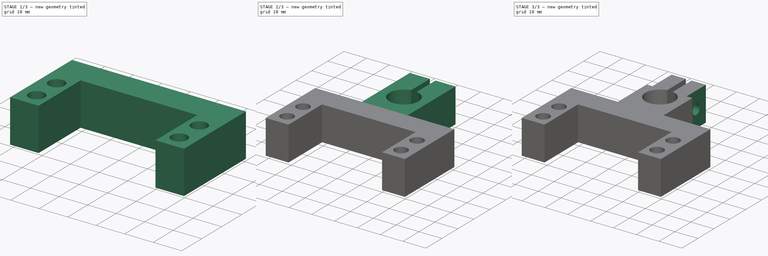
[diagram: build sequence overview — one tinted view per stage of 3, left to right]
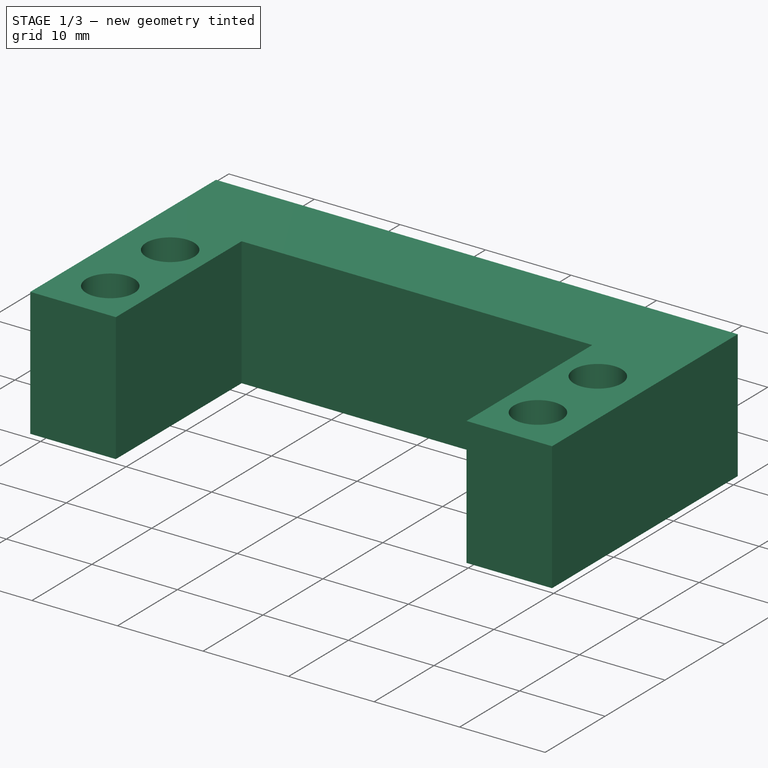
[diagram: stage 1 of 3 — iso view after this stage's code; geometry added in this stage tinted green]
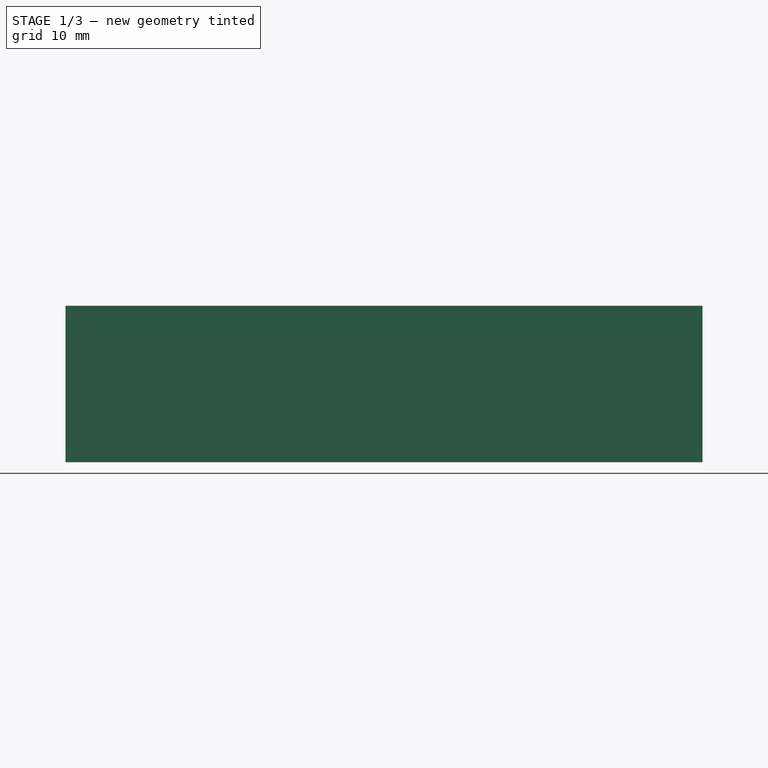
[diagram: stage 1 of 3 — front view after this stage's code; geometry added in this stage tinted green]
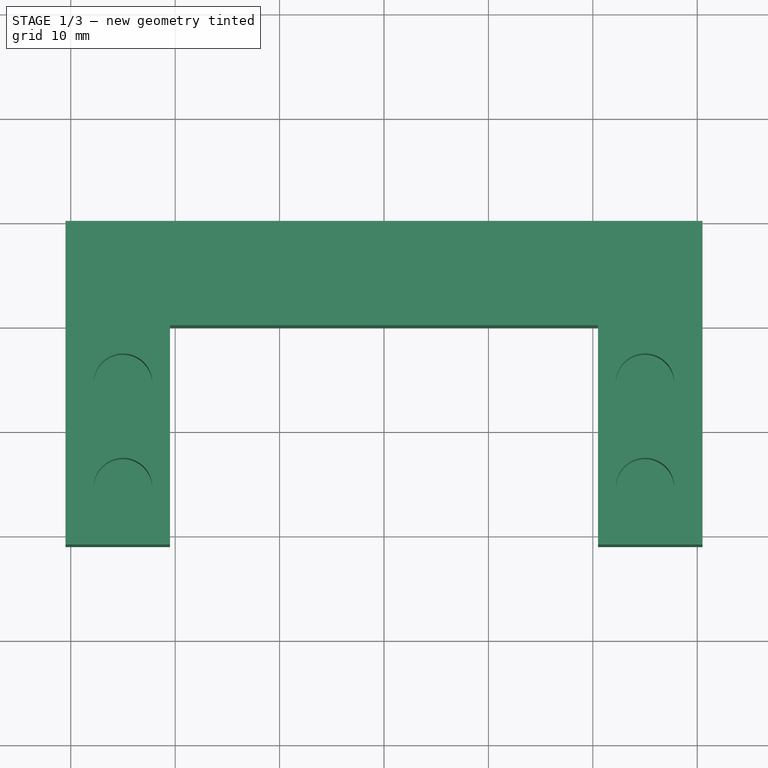
[diagram: stage 1 of 3 — top view after this stage's code; geometry added in this stage tinted green]
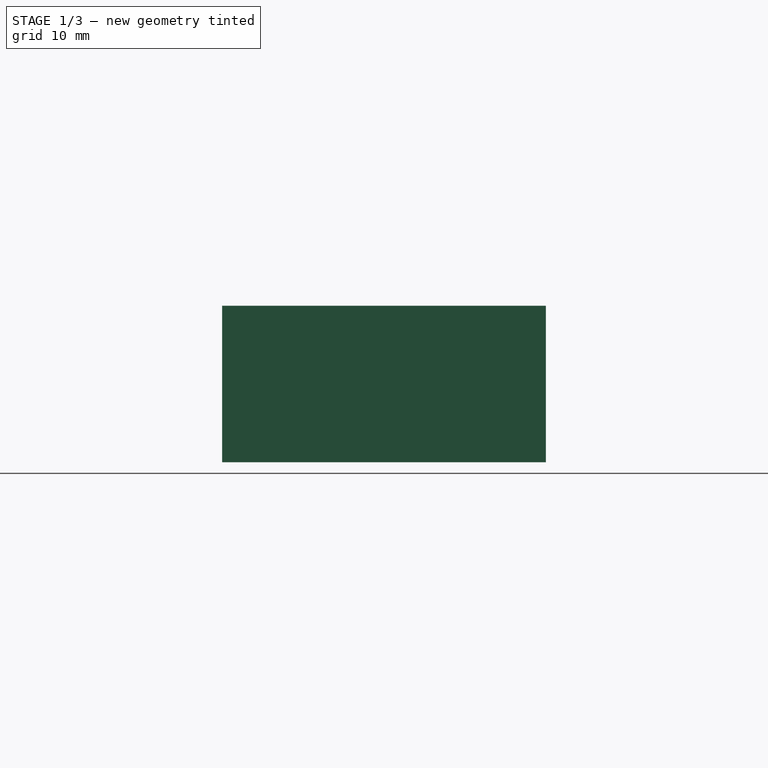
[diagram: stage 1 of 3 — right view after this stage's code; geometry added in this stage tinted green]
FCSTD DOCUMENT  (FreeCAD 0.18.4R)
Label: mount_servo
License: All rights reserved
LicenseURL: http://en.wikipedia.org/wiki/All_rights_reserved
objects: Sketcher::SketchObject×6, PartDesign::Pocket×3, PartDesign::Pad×2, PartDesign::Hole×1, PartDesign::Body×1
note: 19 computed .brp shape members not serialized (recipe doc carries the construction recipe); baked Part::Feature solids carry a one-line shape summary decoded from their .brp

FEATURE [Sketcher::SketchObject] Sketch
  MapMode = 5
  Support = -> [XY_Plane]
  sketch-geometry (8):
    g0: LineSegment StartX=-30.5 StartY=-31 StartZ=0 EndX=-30.5 EndY=0 EndZ=0
    g1: LineSegment StartX=-30.5 StartY=0 StartZ=0 EndX=30.5 EndY=0 EndZ=0
    g2: LineSegment StartX=30.5 StartY=0 StartZ=0 EndX=30.5 EndY=-31 EndZ=0
    g3: LineSegment StartX=30.5 StartY=-31 StartZ=0 EndX=20.5 EndY=-31 EndZ=0
    g4: LineSegment StartX=20.5 StartY=-31 StartZ=0 EndX=20.5 EndY=-10 EndZ=0
    g5: LineSegment StartX=20.5 StartY=-10 StartZ=0 EndX=-20.5 EndY=-10 EndZ=0
    g6: LineSegment StartX=-20.5 StartY=-10 StartZ=0 EndX=-20.5 EndY=-31 EndZ=0
    g7: LineSegment StartX=-20.5 StartY=-31 StartZ=0 EndX=-30.5 EndY=-31 EndZ=0
  constraints (23):
    c: Vertical(g0)
    c: Coincident(g0,g1)
    c: Coincident(g1,g2)
    c: Vertical(g2)
    c: Coincident(g2,g3)
    c: Horizontal(g3)
    c: Coincident(g3,g4)
    c: Vertical(g4)
    c: Coincident(g4,g5)
    c: Horizontal(g5)
    c: Coincident(g5,g6)
    c: Vertical(g6)
    c: Coincident(g6,g7)
    c: Coincident(g7,g0)
    c: Horizontal(g7)
    c: Equal(g7,g3)
    c: Equal(g0,g2)
    c: Tangent(g-1,g1)
    c: DistanceY(g6,g6) = 21
    c: DistanceY(g0,g0) = 31
    c: Symmetric(g0,g1,g-1)
    c: DistanceX(g5,g5) = 41
    c: DistanceX(g3,g3) = 10
FEATURE [PartDesign::Pad] Pad
  Length = 15
  Length2 = 100
  Profile = -> Sketch
  Type = 0
FEATURE [Sketcher::SketchObject] Sketch001
  ExternalGeometry = -> [Pad]
  MapMode = 5
  Placement = pos=(0,0,15) rot=(0,0,1;0rad)
  Support = -> [Pad]
  sketch-geometry (15):
    g0: LineSegment [constr] StartX=20 StartY=-10.5 StartZ=0 EndX=-20 EndY=-10.5 EndZ=0
    g1: LineSegment [constr] StartX=-20 StartY=-10.5 StartZ=0 EndX=-20 EndY=-30.5 EndZ=0
    g2: LineSegment [constr] StartX=-20 StartY=-30.5 StartZ=0 EndX=20 EndY=-30.5 EndZ=0
    g3: LineSegment [constr] StartX=20 StartY=-30.5 StartZ=0 EndX=20 EndY=-10.5 EndZ=0
    g4: GeomPoint X=20.5 Y=-20.5 Z=0
    g5: LineSegment [constr] StartX=20.5 StartY=-20.5 StartZ=0 EndX=-20 EndY=-20.5 EndZ=0
    g6: GeomPoint X=20 Y=-20.5 Z=0
    g7: LineSegment [constr] StartX=25 StartY=-15.5 StartZ=0 EndX=-25 EndY=-15.5 EndZ=0
    g8: LineSegment [constr] StartX=-25 StartY=-15.5 StartZ=0 EndX=-25 EndY=-25.5 EndZ=0
    g9: LineSegment [constr] StartX=-25 StartY=-25.5 StartZ=0 EndX=25 EndY=-25.5 EndZ=0
    g10: LineSegment [constr] StartX=25 StartY=-25.5 StartZ=0 EndX=25 EndY=-15.5 EndZ=0
    g11: Circle CenterX=-25 CenterY=-15.5 CenterZ=0 NormalX=0 NormalY=0 NormalZ=1 AngleXU=0 Radius=2.8
    g12: Circle CenterX=-25 CenterY=-25.5 CenterZ=0 NormalX=0 NormalY=0 NormalZ=1 AngleXU=0 Radius=2.8
    g13: Circle CenterX=25 CenterY=-15.5 CenterZ=0 NormalX=0 NormalY=0 NormalZ=1 AngleXU=0 Radius=2.8
    g14: Circle CenterX=25 CenterY=-25.5 CenterZ=0 NormalX=0 NormalY=0 NormalZ=1 AngleXU=0 Radius=2.8
  constraints (34):
    c: Coincident(g0,g1)
    c: Coincident(g1,g2)
    c: Coincident(g2,g3)
    c: Coincident(g3,g0)
    c: Horizontal(g2)
    c: Vertical(g1)
    c: Vertical(g3)
    c: DistanceX(g0,g0) = 40
    c: DistanceY(g1,g1) = 20
    c: Symmetric(g0,g0,g-2)
    c: Symmetric(g-3,g-3,g4)
    c: Coincident(g5,g4)
    c: Horizontal(g5)
    c: PointOnObject(g6,g5)
    c: Symmetric(g0,g2,g6)
    c: PointOnObject(g5,g1)
    c: Coincident(g7,g8)
    c: Coincident(g8,g9)
    c: Coincident(g9,g10)
    c: Coincident(g10,g7)
    c: Horizontal(g9)
    c: Vertical(g8)
    c: DistanceX(g7,g7) = 50
    c: DistanceY(g10,g10) = 10
    c: Symmetric(g7,g9,g5)
    c: Symmetric(g7,g7,g-2)
    c: Coincident(g11,g7)
    c: Coincident(g12,g8)
    c: Coincident(g13,g7)
    c: Coincident(g14,g9)
    c: Equal(g11,g12)
    c: Equal(g12,g14)
    c: Equal(g14,g13)
    c: Diameter(g11) = 5.6
FEATURE [PartDesign::Pocket] Pocket
  BaseFeature = -> Pad
  Length = 8.2
  Length2 = 100
  Profile = -> Sketch001
  Type = 0
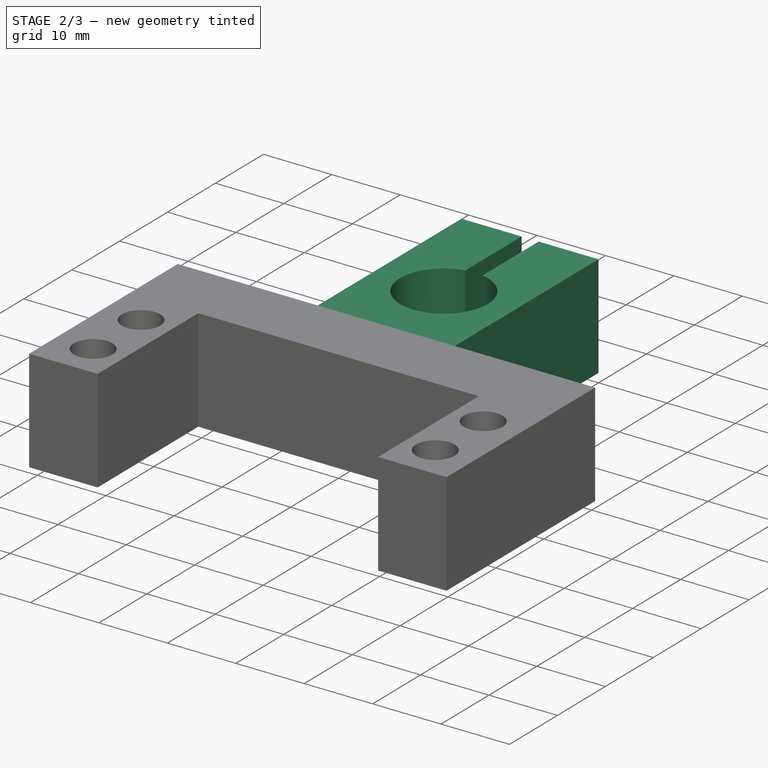
[diagram: stage 2 of 3 — iso view after this stage's code; geometry added in this stage tinted green]
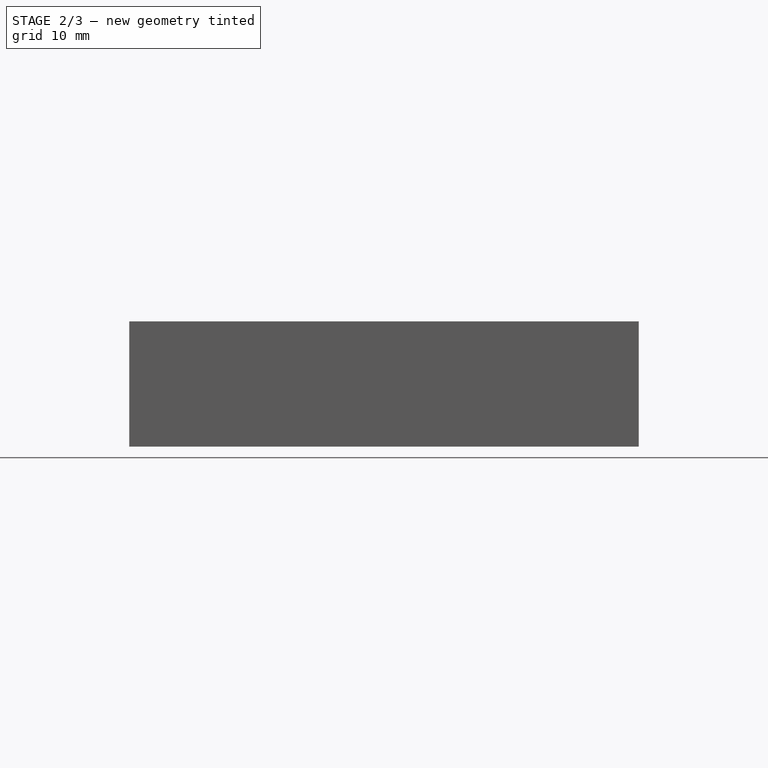
[diagram: stage 2 of 3 — front view after this stage's code; geometry added in this stage tinted green]
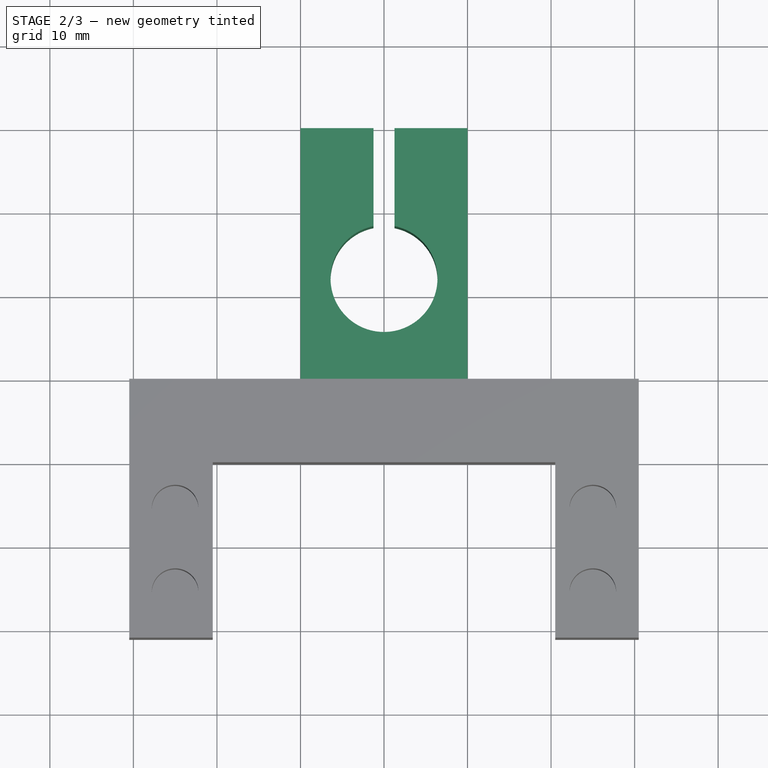
[diagram: stage 2 of 3 — top view after this stage's code; geometry added in this stage tinted green]
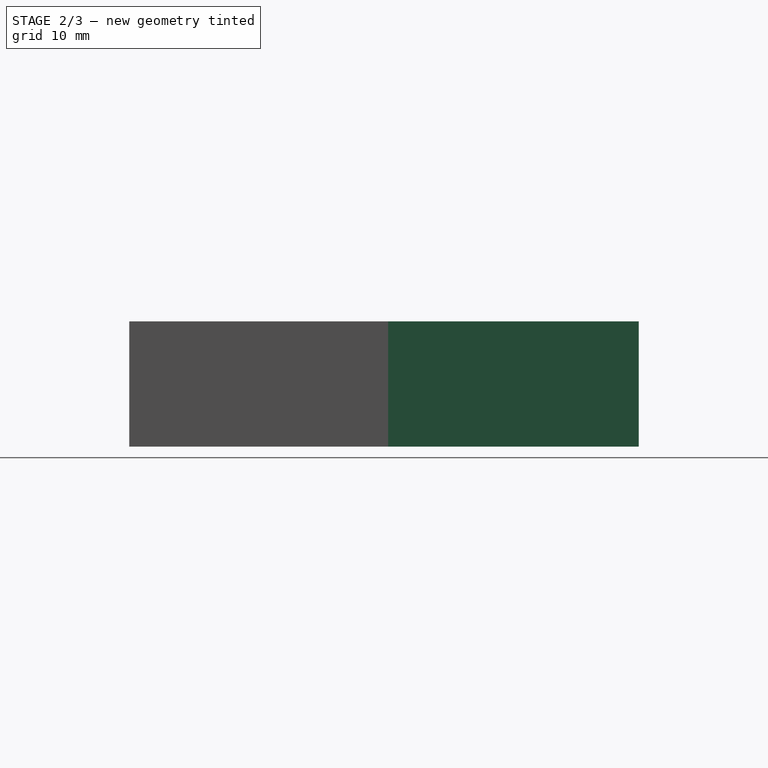
[diagram: stage 2 of 3 — right view after this stage's code; geometry added in this stage tinted green]
FEATURE [Sketcher::SketchObject] Sketch002
  ExternalGeometry = -> [Pocket]
  MapMode = 5
  Placement = pos=(0,0,0) rot=(0,0.707107,0.707107;3.14159rad)
  Support = -> [Pocket]
  sketch-geometry (4):
    g0: LineSegment StartX=-10 StartY=0 StartZ=0 EndX=10 EndY=0 EndZ=0
    g1: LineSegment StartX=10 StartY=0 StartZ=0 EndX=10 EndY=15 EndZ=0
    g2: LineSegment StartX=10 StartY=15 StartZ=0 EndX=-10 EndY=15 EndZ=0
    g3: LineSegment StartX=-10 StartY=15 StartZ=0 EndX=-10 EndY=0 EndZ=0
  constraints (11):
    c: Coincident(g0,g1)
    c: Coincident(g1,g2)
    c: Coincident(g2,g3)
    c: Coincident(g3,g0)
    c: Horizontal(g0)
    c: Vertical(g1)
    c: Vertical(g3)
    c: Symmetric(g2,g1,g-2)
    c: PointOnObject(g2,g-3)
    c: DistanceY(g1,g1) = 15
    c: DistanceX(g0,g0) = 20
FEATURE [PartDesign::Pad] Pad001
  BaseFeature = -> Pocket
  Length = 30
  Length2 = 100
  Profile = -> Sketch002
  Type = 0
FEATURE [Sketcher::SketchObject] Sketch003
  ExternalGeometry = -> [Pad001]
  MapMode = 5
  Placement = pos=(0,3.3e-15,15) rot=(0,0,1;0rad)
  Support = -> [Pad001]
  sketch-geometry (4):
    g0: ArcOfCircle CenterX=0 CenterY=12 CenterZ=0 NormalX=0 NormalY=0 NormalZ=1 AngleXU=0 Radius=6.4 StartAngle=1.76737 EndAngle=7.65741
    g1: LineSegment StartX=1.25 StartY=30 StartZ=0 EndX=-1.25 EndY=30 EndZ=0
    g2: LineSegment StartX=-1.25 StartY=18.2767 StartZ=0 EndX=-1.25 EndY=30 EndZ=0
    g3: LineSegment StartX=1.25 StartY=30 StartZ=0 EndX=1.25 EndY=18.2767 EndZ=0
  constraints (13):
    c: PointOnObject(g0,g-2)
    c: Diameter(g0) = 12.8
    c: PointOnObject(g1,g-4)
    c: PointOnObject(g1,g-4)
    c: Coincident(g2,g0)
    c: Coincident(g2,g1)
    c: Coincident(g3,g1)
    c: Coincident(g3,g0)
    c: Vertical(g3)
    c: Vertical(g2)
    c: Equal(g3,g2)
    c: DistanceY(g-1,g0) = 12
    c: DistanceX(g1,g1) = 2.5
FEATURE [PartDesign::Pocket] Pocket001
  BaseFeature = -> Pad001
  Length = 5
  Length2 = 100
  Profile = -> Sketch003
  Type = 1
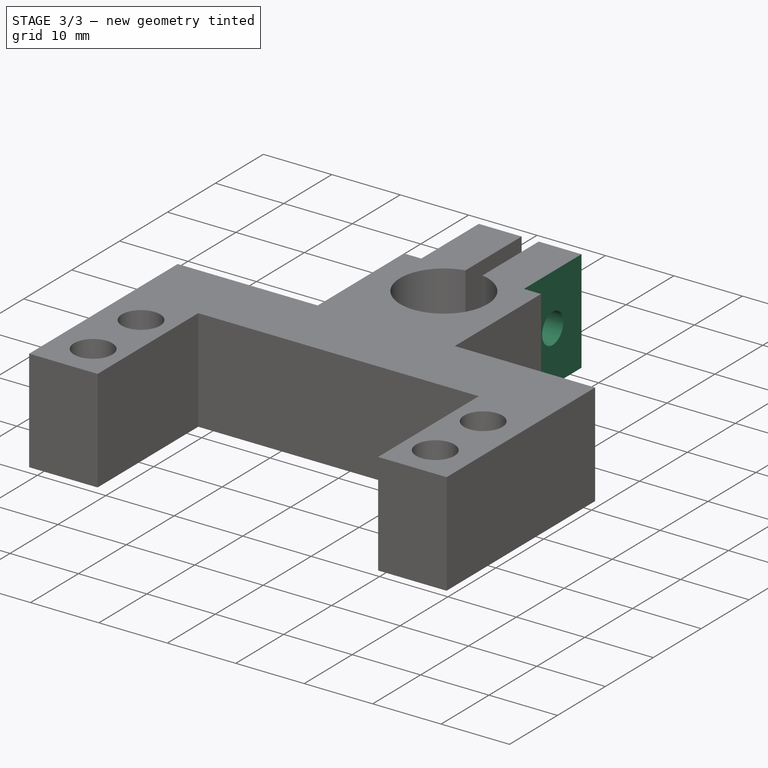
[diagram: stage 3 of 3 — iso view after this stage's code; geometry added in this stage tinted green]
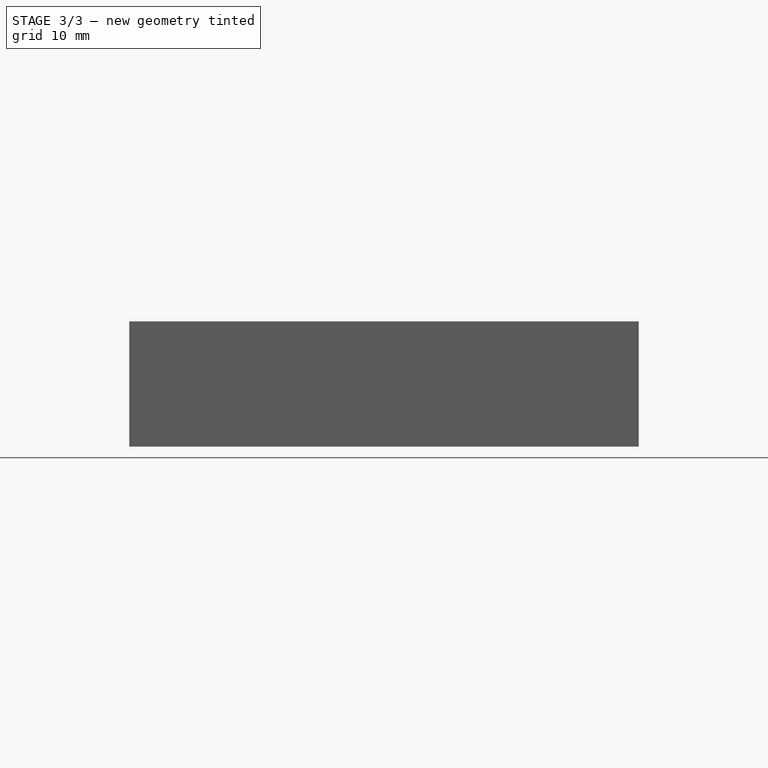
[diagram: stage 3 of 3 — front view after this stage's code; geometry added in this stage tinted green]
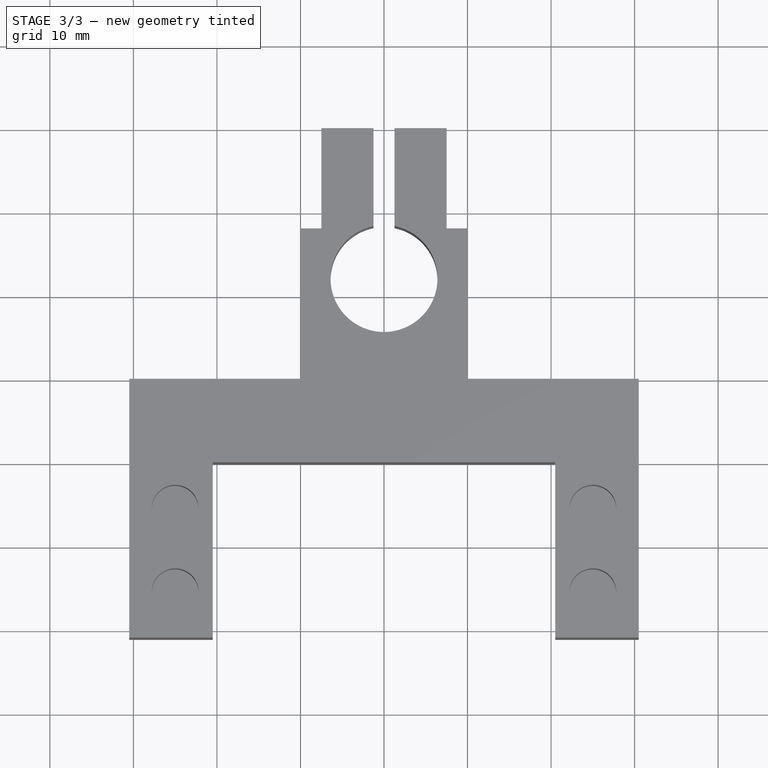
[diagram: stage 3 of 3 — top view after this stage's code; geometry added in this stage tinted green]
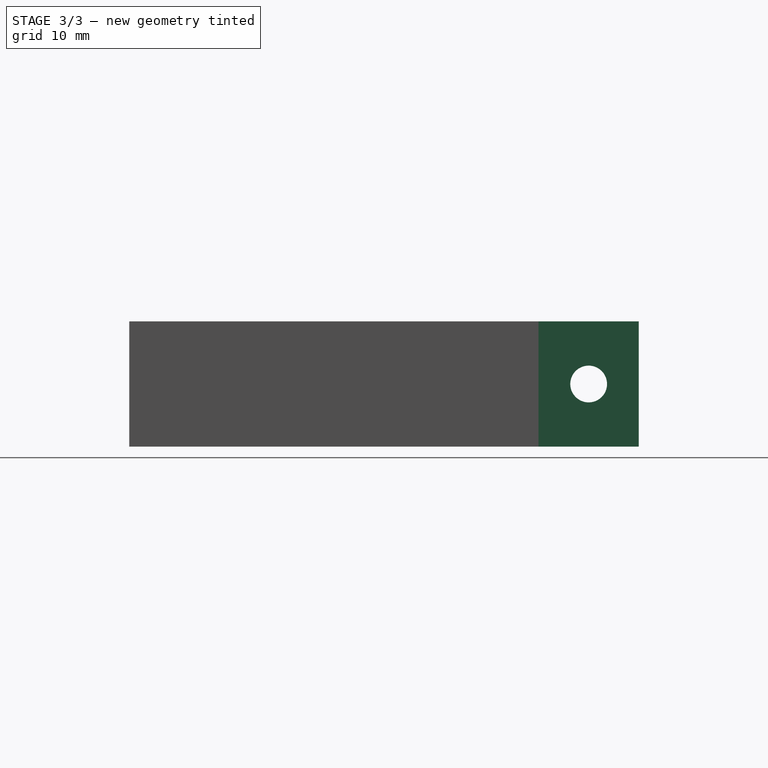
[diagram: stage 3 of 3 — right view after this stage's code; geometry added in this stage tinted green]
FEATURE [Sketcher::SketchObject] Sketch004
  ExternalGeometry = -> [Pocket001]
  MapMode = 5
  Placement = pos=(10,0,0) rot=(0.57735,0.57735,0.57735;2.0944rad)
  Support = -> [Pocket001]
  sketch-geometry (2):
    g0: Circle CenterX=24 CenterY=7.5 CenterZ=0 NormalX=0 NormalY=0 NormalZ=1 AngleXU=0 Radius=2.2
    g1: LineSegment [constr] StartX=30 StartY=7.5 StartZ=0 EndX=10 EndY=7.5 EndZ=0
  constraints (6):
    c: DistanceX(g0,g-3) = 6
    c: PointOnObject(g0,g1)
    c: Symmetric(g-3,g-3,g1)
    c: Diameter(g0) = 4.4
    c: PointOnObject(g1,g-3)
    c: DistanceX(g1,g1) = 20
FEATURE [PartDesign::Hole] Hole
  BaseFeature = -> Pocket001
  Depth = 25
  DepthType = 0
  Diameter = 4.4
  DrillPoint = 1
  DrillPointAngle = 118
  HoleCutCountersinkAngle = 90
  HoleCutDepth = 0
  HoleCutDiameter = 4
  HoleCutType = 0
  ModelActualThread = false
  Profile = -> Sketch004
  Tapered = false
  TaperedAngle = 90
  ThreadAngle = 0
  ThreadClass = 0
  ThreadCutOffInner = 0
  ThreadCutOffOuter = 0
  ThreadDirection = 0
  ThreadFit = 0
  ThreadPitch = 0
  ThreadSize = 5
  ThreadType = 1
  Threaded = false
FEATURE [Sketcher::SketchObject] Sketch005
  ExternalGeometry = -> [Hole]
  MapMode = 5
  Placement = pos=(0,3.3e-15,15) rot=(0,0,1;0rad)
  Support = -> [Hole]
  sketch-geometry (8):
    g0: LineSegment StartX=-10 StartY=30 StartZ=0 EndX=-7.5 EndY=30 EndZ=0
    g1: LineSegment StartX=-7.5 StartY=30 StartZ=0 EndX=-7.5 EndY=18 EndZ=0
    g2: LineSegment StartX=-7.5 StartY=18 StartZ=0 EndX=-10 EndY=18 EndZ=0
    g3: LineSegment StartX=-10 StartY=18 StartZ=0 EndX=-10 EndY=30 EndZ=0
    g4: LineSegment StartX=10 StartY=30 StartZ=0 EndX=7.5 EndY=30 EndZ=0
    g5: LineSegment StartX=7.5 StartY=30 StartZ=0 EndX=7.5 EndY=18 EndZ=0
    g6: LineSegment StartX=7.5 StartY=18 StartZ=0 EndX=10 EndY=18 EndZ=0
    g7: LineSegment StartX=10 StartY=18 StartZ=0 EndX=10 EndY=30 EndZ=0
  constraints (22):
    c: Coincident(g0,g1)
    c: Coincident(g1,g2)
    c: Coincident(g2,g3)
    c: Coincident(g3,g0)
    c: Horizontal(g0)
    c: Horizontal(g2)
    c: Vertical(g1)
    c: Vertical(g3)
    c: Coincident(g0,g-3)
    c: Coincident(g4,g5)
    c: Coincident(g5,g6)
    c: Coincident(g6,g7)
    c: Coincident(g7,g4)
    c: Horizontal(g4)
    c: Horizontal(g6)
    c: Vertical(g5)
    c: Vertical(g7)
    c: Coincident(g4,g-4)
    c: Equal(g2,g6)
    c: Equal(g1,g5)
    c: DistanceX(g2,g2) = 2.5
    c: DistanceY(g1,g1) = 12
FEATURE [PartDesign::Pocket] Pocket002
  BaseFeature = -> Hole
  Length = 5
  Length2 = 100
  Profile = -> Sketch005
  Type = 1
FEATURE [PartDesign::Body] Body
  Group = -> [Sketch,Pad,Sketch001,Pocket,Sketch002,Pad001,Sketch003,Pocket001,Sketch004,Hole,Sketch005,Pocket002]
  Origin = -> Origin
  Tip = -> Pocket002
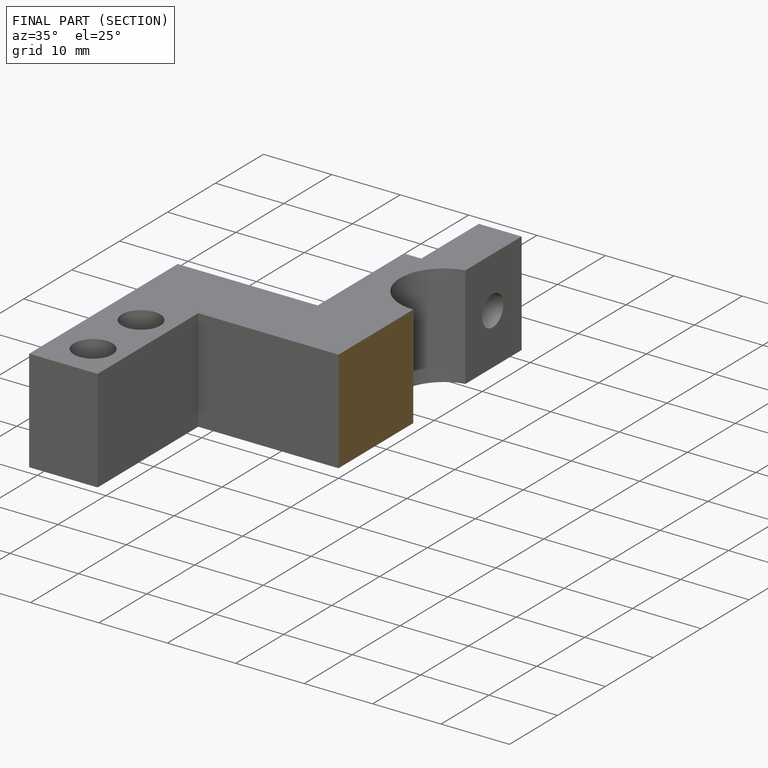
[diagram: finished part — half-section view (interior)]
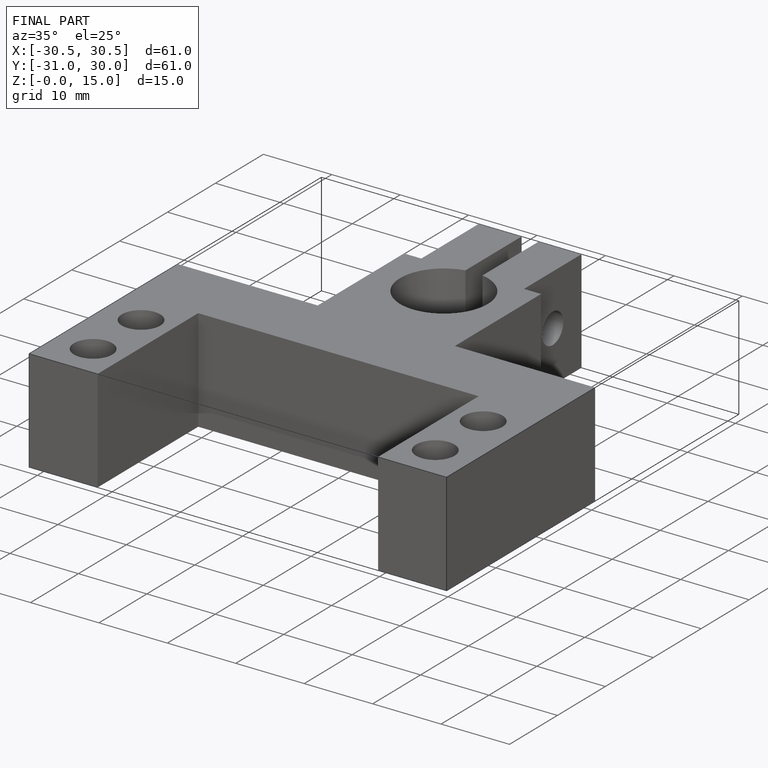
[diagram: finished part — iso view with bounding-box wireframe]
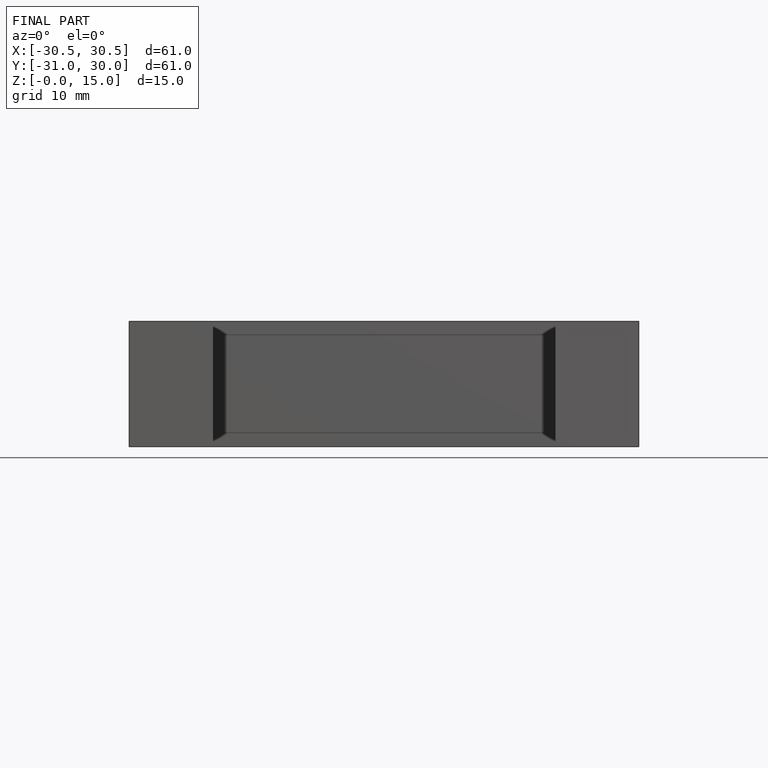
[diagram: finished part — front view with bounding-box wireframe]
